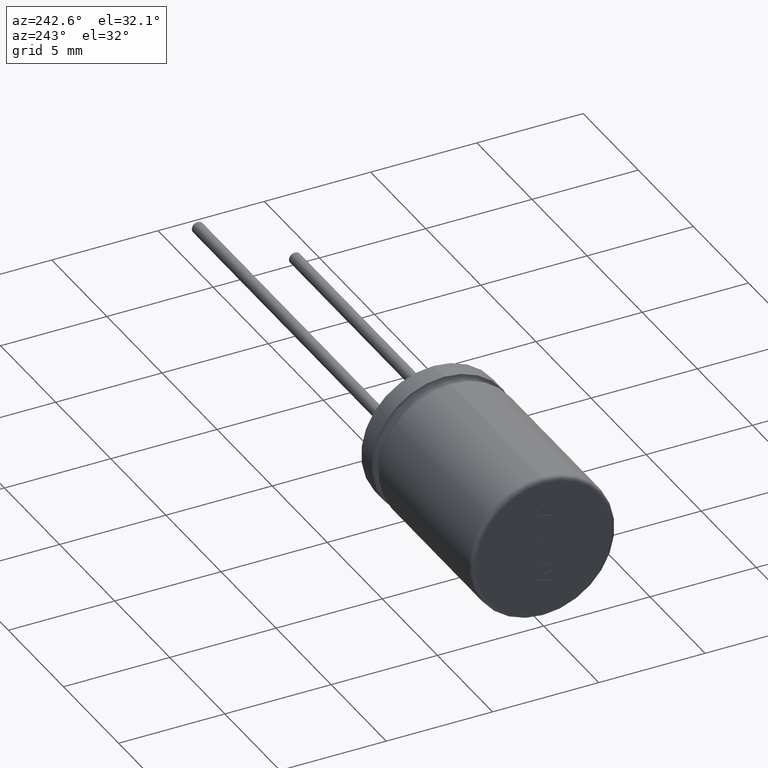
[diagram: clean part render]
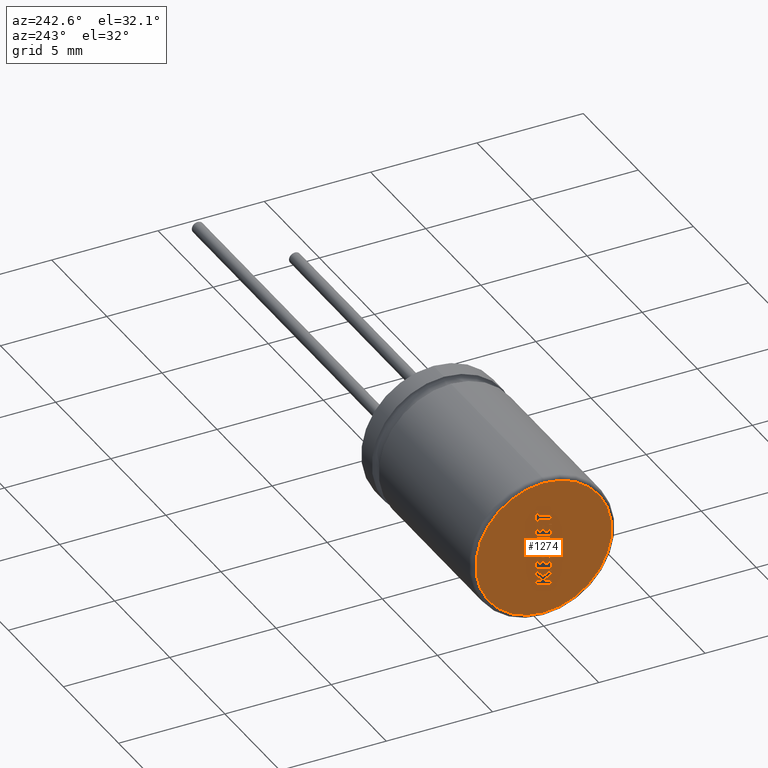
[diagram: same view with one face highlighted and labeled with its STEP entity id]
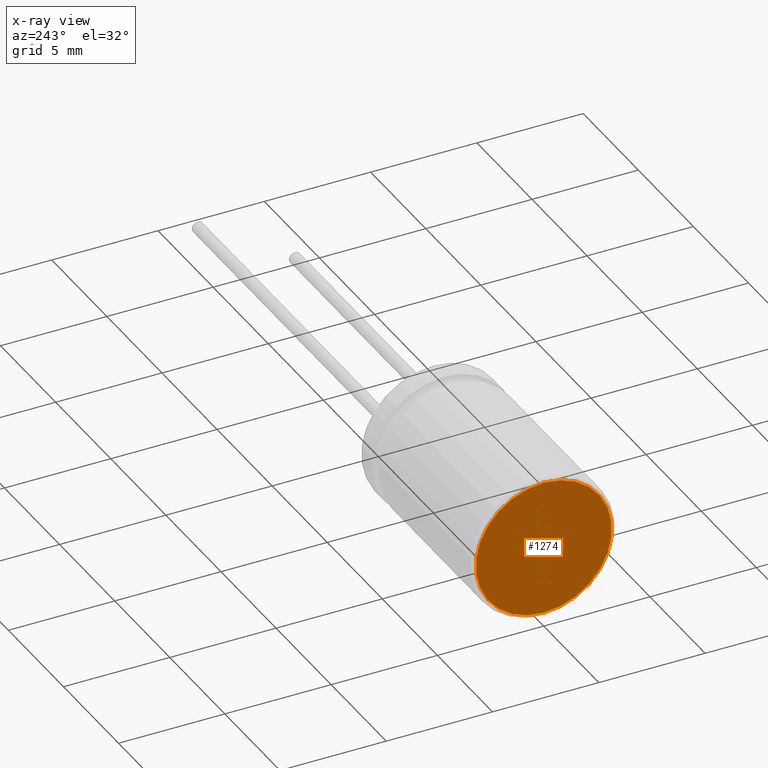
[diagram: x-ray of the same camera — body ghosted, the highlighted face saturated]
A machine part, auxiliary view. The second image highlights one B-rep face of the part: STEP entity #1274.
The next image is the same camera in x-ray: the body ghosted, the highlighted face saturated — about 0% of this face is hidden behind the body in this view.
In plain terms, the highlighted planar face has unit normal (1, 0, 0).
Its self-contained STEP definition (entity closure, byte-faithful):
#6 = CARTESIAN_POINT ( 'NONE',  ( 0.0000000000000000000, 0.0000000000000000000, 0.0000000000000000000 ) ) ;
#54 = DIRECTION ( 'NONE',  ( 1.000000000000000000, 0.0000000000000000000, 0.0000000000000000000 ) ) ;
#171 = CARTESIAN_POINT ( 'NONE',  ( 0.0000000000000000000, 0.0000000000000000000, 0.0000000000000000000 ) ) ;
#289 = CARTESIAN_POINT ( 'NONE',  ( 0.0000000000000000000, 4.041334437186265000E-016, 3.199999999999999700 ) ) ;
#366 = AXIS2_PLACEMENT_3D ( 'NONE', #2694, #54, #1104 ) ;
#445 = DIRECTION ( 'NONE',  ( -1.000000000000000000, -0.0000000000000000000, -0.0000000000000000000 ) ) ;
#463 = CARTESIAN_POINT ( 'NONE',  ( 0.0000000000000000000, 0.0000000000000000000, -3.199999999999999700 ) ) ;
#587 = AXIS2_PLACEMENT_3D ( 'NONE', #171, #445, #2824 ) ;
#736 = VERTEX_POINT ( 'NONE', #289 ) ;
#840 = PLANE ( 'NONE',  #366 ) ;
#1004 = VERTEX_POINT ( 'NONE', #463 ) ;
#1081 = EDGE_CURVE ( 'NONE', #736, #1004, #1278, .T. ) ;
#1104 = DIRECTION ( 'NONE',  ( 0.0000000000000000000, 0.0000000000000000000, -1.000000000000000000 ) ) ;
#1274 = ADVANCED_FACE ( 'NONE', ( #2484 ), #840, .F. ) ;
#1278 = CIRCLE ( 'NONE', #1421, 3.199999999999999700 ) ;
#1421 = AXIS2_PLACEMENT_3D ( 'NONE', #6, #1821, #2633 ) ;
#1682 = ORIENTED_EDGE ( 'NONE', *, *, #2692, .T. ) ;
#1727 = ORIENTED_EDGE ( 'NONE', *, *, #1081, .T. ) ;
#1821 = DIRECTION ( 'NONE',  ( -1.000000000000000000, -0.0000000000000000000, -0.0000000000000000000 ) ) ;
#2477 = CIRCLE ( 'NONE', #587, 3.199999999999999700 ) ;
#2484 = FACE_OUTER_BOUND ( 'NONE', #2899, .T. ) ;
#2633 = DIRECTION ( 'NONE',  ( 0.0000000000000000000, 0.0000000000000000000, -1.000000000000000000 ) ) ;
#2692 = EDGE_CURVE ( 'NONE', #1004, #736, #2477, .T. ) ;
#2694 = CARTESIAN_POINT ( 'NONE',  ( 0.0000000000000000000, 0.0000000000000000000, 0.0000000000000000000 ) ) ;
#2824 = DIRECTION ( 'NONE',  ( 0.0000000000000000000, 0.0000000000000000000, -1.000000000000000000 ) ) ;
#2899 = EDGE_LOOP ( 'NONE', ( #1682, #1727 ) ) ;